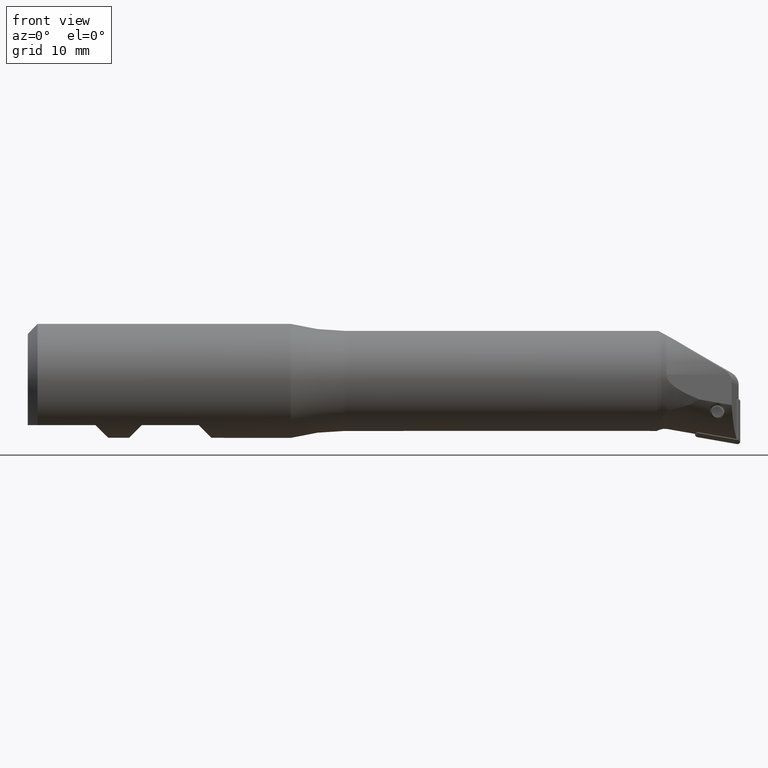
[diagram: clean part render]
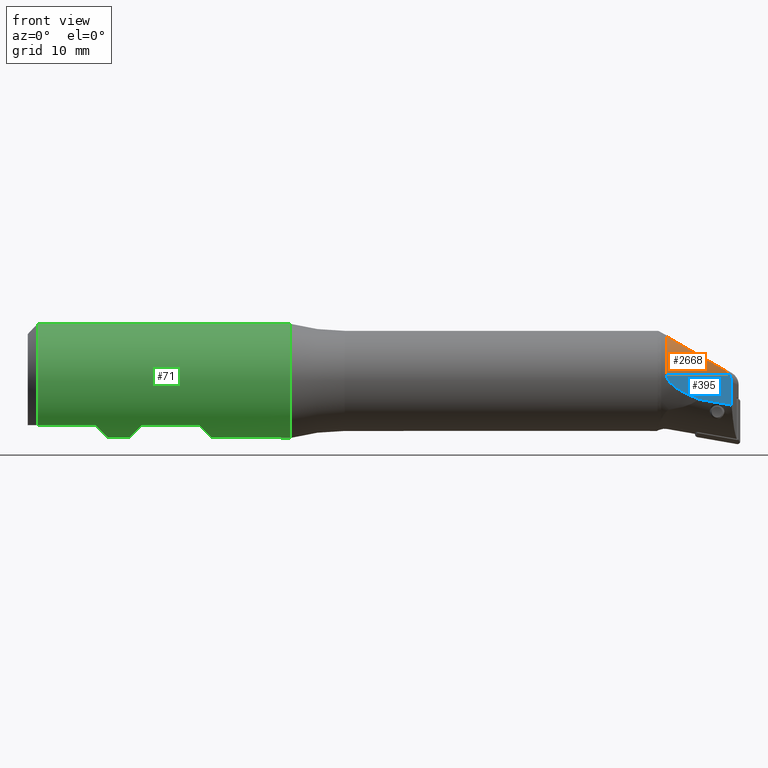
[diagram: same view with three faces highlighted in distinct colors, each labeled with its STEP entity id]
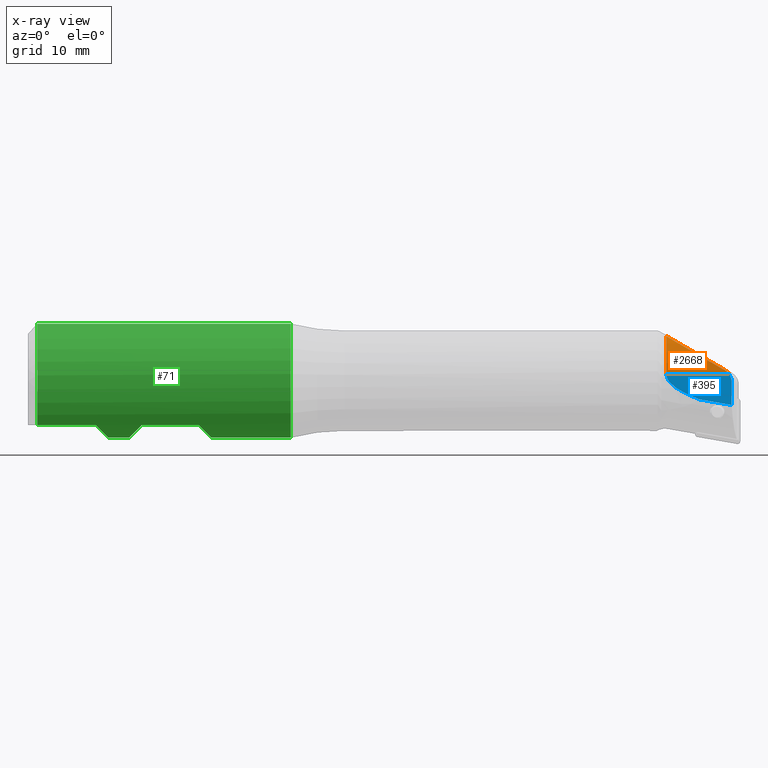
[diagram: x-ray of the same camera — body ghosted, the three highlighted faces saturated]
A machine part, front view with three faces highlighted in distinct colors.
The next image is the same camera in x-ray (body ghosted, the three faces saturated) — at least one of them is partly hidden behind the body in this view.
Their STEP definitions:

[orange] entity #2668 — the highlighted cylindrical surface (partial cylindrical patch) has radius 7.2 mm, axis along (-1, 0, 0).
#128 = CARTESIAN_POINT ( 'NONE',  ( 98.06803569502653800, -7.069949259488811100, 1.367062820759149800 ) ) ;
#144 = CARTESIAN_POINT ( 'NONE',  ( 91.37777261762256800, -5.349452263379819600, 5.247966563993948300 ) ) ;
#149 = DIRECTION ( 'NONE',  ( -1.000000000000000000, -0.0000000000000000000, 0.0000000000000000000 ) ) ;
#222 = CARTESIAN_POINT ( 'NONE',  ( 89.64991067919776000, -7.146332291817522300, 0.8774592725170650100 ) ) ;
#276 = ORIENTED_EDGE ( 'NONE', *, *, #1886, .F. ) ;
#286 = CARTESIAN_POINT ( 'NONE',  ( 89.64991067919776000, 0.0000000000000000000, 0.0000000000000000000 ) ) ;
#473 = CARTESIAN_POINT ( 'NONE',  ( 100.0000000000000000, 0.0000000000000000000, 0.0000000000000000000 ) ) ;
#576 = EDGE_CURVE ( 'NONE', #1666, #2981, #2375, .T. ) ;
#661 = LINE ( 'NONE', #1363, #3661 ) ;
#706 = FACE_OUTER_BOUND ( 'NONE', #3529, .T. ) ;
#736 = ORIENTED_EDGE ( 'NONE', *, *, #3323, .T. ) ;
#786 = CARTESIAN_POINT ( 'NONE',  ( 98.48807821853047500, -7.146332291817521400, 0.8774592725170650100 ) ) ;
#831 = AXIS2_PLACEMENT_3D ( 'NONE', #473, #149, #1874 ) ;
#965 = CARTESIAN_POINT ( 'NONE',  ( 89.64991067919774500, -3.540030141600190000, 6.269624119240497800 ) ) ;
#1279 = AXIS2_PLACEMENT_3D ( 'NONE', #286, #3679, #1358 ) ;
#1358 = DIRECTION ( 'NONE',  ( 0.0000000000000000000, 0.0000000000000000000, -1.000000000000000000 ) ) ;
#1363 = CARTESIAN_POINT ( 'NONE',  ( 100.0000000000000000, -7.146332291817520500, 0.8774592725170650100 ) ) ;
#1547 = B_SPLINE_CURVE_WITH_KNOTS ( 'NONE', 3,
 ( #1551, #3602, #2165, #128, #3567, #2446 ),
 .UNSPECIFIED., .F., .F.,
 ( 4, 2, 4 ),
 ( 0.0000000000000000000, 0.0004871406577945513100, 0.0009742813155891026100 ),
 .UNSPECIFIED. ) ;
#1551 = CARTESIAN_POINT ( 'NONE',  ( 98.48807821853047500, -7.146332291817521400, 0.8774592725170650100 ) ) ;
#1632 = DIRECTION ( 'NONE',  ( -1.000000000000000000, -1.577021341797098100E-016, 0.0000000000000000000 ) ) ;
#1666 = VERTEX_POINT ( 'NONE', #965 ) ;
#1703 = CARTESIAN_POINT ( 'NONE',  ( 97.79454697146641700, -7.031648091942604300, 1.547877615019996400 ) ) ;
#1783 = ORIENTED_EDGE ( 'NONE', *, *, #2365, .F. ) ;
#1855 = CARTESIAN_POINT ( 'NONE',  ( 89.64991067919774500, -3.540030141600190000, 6.269624119240497800 ) ) ;
#1874 = DIRECTION ( 'NONE',  ( 0.0000000000000000000, 0.0000000000000000000, 1.000000000000000000 ) ) ;
#1886 = EDGE_CURVE ( 'NONE', #3158, #3164, #661, .T. ) ;
#2141 = CARTESIAN_POINT ( 'NONE',  ( 97.79454697146641700, -7.031648091942604300, 1.547877615019996400 ) ) ;
#2165 = CARTESIAN_POINT ( 'NONE',  ( 98.30021398652390000, -7.109750562914676700, 1.142142819783420000 ) ) ;
#2169 = CYLINDRICAL_SURFACE ( 'NONE', #831, 7.200000000000002800 ) ;
#2191 = ORIENTED_EDGE ( 'NONE', *, *, #576, .F. ) ;
#2365 = EDGE_CURVE ( 'NONE', #3164, #1666, #2710, .T. ) ;
#2375 =( BOUNDED_CURVE ( )  B_SPLINE_CURVE ( 3, ( #1855, #144, #2716, #2141 ),
 .UNSPECIFIED., .F., .F. ) 
 B_SPLINE_CURVE_WITH_KNOTS ( ( 4, 4 ),
 ( 0.4953398551287048200, 1.335454243285933300 ),
 .UNSPECIFIED. ) 
 CURVE ( )  GEOMETRIC_REPRESENTATION_ITEM ( )  RATIONAL_B_SPLINE_CURVE ( ( 1.000000000000000000, 0.9420437448903211700, 0.9420437448903211700, 1.000000000000000000 ) ) 
 REPRESENTATION_ITEM ( '' )  );
#2446 = CARTESIAN_POINT ( 'NONE',  ( 97.79454697146641700, -7.031648091942604300, 1.547877615019996400 ) ) ;
#2668 = ADVANCED_FACE ( 'NONE', ( #706 ), #2169, .T. ) ;
#2710 = CIRCLE ( 'NONE', #1279, 7.200000000000002800 ) ;
#2716 = CARTESIAN_POINT ( 'NONE',  ( 94.25967569146085600, -6.584928488796129500, 3.577220900701974400 ) ) ;
#2981 = VERTEX_POINT ( 'NONE', #1703 ) ;
#3158 = VERTEX_POINT ( 'NONE', #786 ) ;
#3164 = VERTEX_POINT ( 'NONE', #222 ) ;
#3323 = EDGE_CURVE ( 'NONE', #3158, #2981, #1547, .T. ) ;
#3529 = EDGE_LOOP ( 'NONE', ( #276, #736, #2191, #1783 ) ) ;
#3567 = CARTESIAN_POINT ( 'NONE',  ( 97.93654664729345400, -7.049593310822619900, 1.466356658277222500 ) ) ;
#3602 = CARTESIAN_POINT ( 'NONE',  ( 98.40162076703536800, -7.129246351175048300, 1.016613092157164800 ) ) ;
#3661 = VECTOR ( 'NONE', #1632, 1000.000000000000000 ) ;
#3679 = DIRECTION ( 'NONE',  ( -1.000000000000000000, -0.0000000000000000000, -0.0000000000000000000 ) ) ;

[blue] entity #395 — the highlighted planar face has unit normal (0, -0.9925, 0.1219).
#9 = DIRECTION ( 'NONE',  ( 0.0000000000000000000, -0.1218693434051477300, -0.9925461516413219800 ) ) ;
#21 = CARTESIAN_POINT ( 'NONE',  ( 98.78314855636853100, -7.273322600411209000, -0.1567937936653388500 ) ) ;
#39 = VECTOR ( 'NONE', #481, 1000.000000000000000 ) ;
#56 = EDGE_CURVE ( 'NONE', #2943, #3158, #3146, .T. ) ;
#222 = CARTESIAN_POINT ( 'NONE',  ( 89.64991067919776000, -7.146332291817522300, 0.8774592725170650100 ) ) ;
#250 = EDGE_CURVE ( 'NONE', #3219, #2943, #2575, .T. ) ;
#307 = PLANE ( 'NONE',  #922 ) ;
#339 = ORIENTED_EDGE ( 'NONE', *, *, #250, .T. ) ;
#367 = EDGE_CURVE ( 'NONE', #3164, #1436, #3411, .T. ) ;
#395 = ADVANCED_FACE ( 'NONE', ( #1067 ), #307, .T. ) ;
#428 = DIRECTION ( 'NONE',  ( 0.9848077530122072400, -0.02116238939576977100, -0.1723538304828445600 ) ) ;
#481 = DIRECTION ( 'NONE',  ( -1.786639148493052100E-018, 0.1218693434051477300, 0.9925461516413219800 ) ) ;
#541 = CARTESIAN_POINT ( 'NONE',  ( 89.97964391630277700, -7.261188769749930200, -0.05797167326148981700 ) ) ;
#617 = CARTESIAN_POINT ( 'NONE',  ( 98.48807821853047500, -7.146332291817521400, 0.8774592725170650100 ) ) ;
#661 = LINE ( 'NONE', #1363, #3661 ) ;
#786 = CARTESIAN_POINT ( 'NONE',  ( 98.48807821853047500, -7.146332291817521400, 0.8774592725170650100 ) ) ;
#792 = VECTOR ( 'NONE', #428, 1000.000000000000200 ) ;
#824 = CARTESIAN_POINT ( 'NONE',  ( 89.64991067919777400, -7.161953534438749700, 0.7502344609743596400 ) ) ;
#837 = CARTESIAN_POINT ( 'NONE',  ( 89.64991067919776000, -7.146332291817522300, 0.8774592725170650100 ) ) ;
#899 = CARTESIAN_POINT ( 'NONE',  ( 92.40860406270488200, -7.475154339098153000, -1.800581393692227700 ) ) ;
#910 = CARTESIAN_POINT ( 'NONE',  ( 91.96450670417419800, -7.447431267558289200, -1.574795095024034400 ) ) ;
#922 = AXIS2_PLACEMENT_3D ( 'NONE', #2597, #3185, #9 ) ;
#1067 = FACE_OUTER_BOUND ( 'NONE', #3372, .T. ) ;
#1117 = CARTESIAN_POINT ( 'NONE',  ( 90.14594992610325600, -7.285133363537510400, -0.2529847401446684300 ) ) ;
#1150 = CARTESIAN_POINT ( 'NONE',  ( 90.70041208851837700, -7.347417158195818300, -0.7602455406907555600 ) ) ;
#1199 = CARTESIAN_POINT ( 'NONE',  ( 93.77094883624656100, -7.550894791033702100, -2.417437872866695900 ) ) ;
#1360 = CARTESIAN_POINT ( 'NONE',  ( 98.78314855636853100, -8.341730046946196400, -8.858274164473991500 ) ) ;
#1363 = CARTESIAN_POINT ( 'NONE',  ( 100.0000000000000000, -7.146332291817520500, 0.8774592725170650100 ) ) ;
#1402 = EDGE_CURVE ( 'NONE', #1436, #3219, #1531, .T. ) ;
#1433 = CARTESIAN_POINT ( 'NONE',  ( 94.23505425264080800, -7.573672046597678800, -2.602943732858301800 ) ) ;
#1436 = VERTEX_POINT ( 'NONE', #3085 ) ;
#1531 = LINE ( 'NONE', #2735, #792 ) ;
#1598 = ORIENTED_EDGE ( 'NONE', *, *, #56, .T. ) ;
#1632 = DIRECTION ( 'NONE',  ( -1.000000000000000000, -1.577021341797098100E-016, 0.0000000000000000000 ) ) ;
#1836 = ORIENTED_EDGE ( 'NONE', *, *, #367, .T. ) ;
#1886 = EDGE_CURVE ( 'NONE', #3158, #3164, #661, .T. ) ;
#2139 = CARTESIAN_POINT ( 'NONE',  ( 98.78314855636853100, -7.671405378174101000, -3.398917842776739900 ) ) ;
#2161 = ORIENTED_EDGE ( 'NONE', *, *, #1402, .T. ) ;
#2282 = ORIENTED_EDGE ( 'NONE', *, *, #1886, .T. ) ;
#2362 = CARTESIAN_POINT ( 'NONE',  ( 98.78314855636853100, -7.273322600411209000, -0.1567937936653388500 ) ) ;
#2575 = LINE ( 'NONE', #1360, #39 ) ;
#2597 = CARTESIAN_POINT ( 'NONE',  ( 100.0000000000000000, -7.146332291817520500, 0.8774592725170650100 ) ) ;
#2613 = CARTESIAN_POINT ( 'NONE',  ( 98.78314855636853100, -7.228121280757549400, 0.2113414125956903400 ) ) ;
#2620 = CARTESIAN_POINT ( 'NONE',  ( 91.32064200035017600, -7.400338910407167100, -1.191258624275406000 ) ) ;
#2735 = CARTESIAN_POINT ( 'NONE',  ( 101.7177212463918700, -7.734465980394700700, -3.912505233218006600 ) ) ;
#2943 = VERTEX_POINT ( 'NONE', #21 ) ;
#3085 = CARTESIAN_POINT ( 'NONE',  ( 94.23505425264080800, -7.573672046597678800, -2.602943732858301800 ) ) ;
#3091 = CARTESIAN_POINT ( 'NONE',  ( 89.66927014974007200, -7.177147427873456400, 0.6264901292523733500 ) ) ;
#3146 =( BOUNDED_CURVE ( )  B_SPLINE_CURVE ( 3, ( #2362, #2613, #3480, #617 ),
 .UNSPECIFIED., .F., .F. ) 
 B_SPLINE_CURVE_WITH_KNOTS ( ( 4, 4 ),
 ( 5.763884693139955200, 6.311891708544264300 ),
 .UNSPECIFIED. ) 
 CURVE ( )  GEOMETRIC_REPRESENTATION_ITEM ( )  RATIONAL_B_SPLINE_CURVE ( ( 1.000000000000000000, 0.9751302094480373000, 0.9751302094480373000, 1.000000000000000000 ) ) 
 REPRESENTATION_ITEM ( '' )  );
#3158 = VERTEX_POINT ( 'NONE', #786 ) ;
#3164 = VERTEX_POINT ( 'NONE', #222 ) ;
#3172 = CARTESIAN_POINT ( 'NONE',  ( 93.31164108690664700, -7.526931594359078700, -2.222273297626877800 ) ) ;
#3185 = DIRECTION ( 'NONE',  ( 1.565266463856943400E-016, -0.9925461516413219800, 0.1218693434051477300 ) ) ;
#3219 = VERTEX_POINT ( 'NONE', #2139 ) ;
#3372 = EDGE_LOOP ( 'NONE', ( #339, #1598, #2282, #1836, #2161 ) ) ;
#3394 = CARTESIAN_POINT ( 'NONE',  ( 89.74097240157705400, -7.206807127113211900, 0.3849312636942811000 ) ) ;
#3411 = B_SPLINE_CURVE_WITH_KNOTS ( 'NONE', 3,
 ( #837, #824, #3091, #3394, #3682, #541, #1117, #3691, #1150, #3426, #2620, #910, #899, #3172, #1199, #1433 ),
 .UNSPECIFIED., .F., .F.,
 ( 4, 2, 2, 2, 2, 2, 2, 4 ),
 ( 1.982727753661706700E-007, 0.0003785819590555002800, 0.0007569656453356343900, 0.001513733017895923000, 0.002270500390456211600, 0.003027267763016500400, 0.004540802508137077600, 0.006054337253257654300 ),
 .UNSPECIFIED. ) ;
#3426 = CARTESIAN_POINT ( 'NONE',  ( 91.10975275850995600, -7.383706164088489600, -1.055795776207488100 ) ) ;
#3480 = CARTESIAN_POINT ( 'NONE',  ( 98.68228327876111900, -7.184711587924299500, 0.5648849893616531000 ) ) ;
#3661 = VECTOR ( 'NONE', #1632, 1000.000000000000000 ) ;
#3682 = CARTESIAN_POINT ( 'NONE',  ( 89.79320461070453500, -7.221098990086035000, 0.2685333805424555700 ) ) ;
#3691 = CARTESIAN_POINT ( 'NONE',  ( 90.50490913502152100, -7.328064125211407800, -0.6026277356336885400 ) ) ;

[green] entity #71 — the highlighted cylindrical surface (bore or boss wall) has radius 8 mm, axis along (-1, -0, -0).
#2 = VERTEX_POINT ( 'NONE', #1227 ) ;
#36 = LINE ( 'NONE', #3296, #1369 ) ;
#66 = VERTEX_POINT ( 'NONE', #3218 ) ;
#71 = ADVANCED_FACE ( 'NONE', ( #2495, #1546, #1633 ), #2217, .T. ) ;
#75 = DIRECTION ( 'NONE',  ( 1.000000000000000000, 0.0000000000000000000, 0.0000000000000000000 ) ) ;
#95 = CARTESIAN_POINT ( 'NONE',  ( -3.175455607189903200, 0.0000000000000000000, 0.0000000000000000000 ) ) ;
#159 = ORIENTED_EDGE ( 'NONE', *, *, #1021, .T. ) ;
#174 = DIRECTION ( 'NONE',  ( -1.000000000000000000, -0.0000000000000000000, -0.0000000000000000000 ) ) ;
#242 = DIRECTION ( 'NONE',  ( 0.0000000000000000000, 0.0000000000000000000, 1.000000000000000000 ) ) ;
#267 = CIRCLE ( 'NONE', #3386, 8.000000000000000000 ) ;
#351 = LINE ( 'NONE', #675, #716 ) ;
#491 = EDGE_LOOP ( 'NONE', ( #1430, #1422, #877, #912 ) ) ;
#493 = DIRECTION ( 'NONE',  ( -1.000000000000000000, -0.0000000000000000000, -0.0000000000000000000 ) ) ;
#528 = EDGE_CURVE ( 'NONE', #2328, #2, #1771, .T. ) ;
#548 = EDGE_CURVE ( 'NONE', #66, #3536, #351, .T. ) ;
#578 = CARTESIAN_POINT ( 'NONE',  ( 24.00000000000000000, -5.055689863905816300, -6.199999999999999300 ) ) ;
#636 = ORIENTED_EDGE ( 'NONE', *, *, #875, .T. ) ;
#674 = EDGE_CURVE ( 'NONE', #3536, #1796, #3645, .T. ) ;
#675 = CARTESIAN_POINT ( 'NONE',  ( -3.175455607189903200, 5.055689863905816300, -6.199999999999999300 ) ) ;
#716 = VECTOR ( 'NONE', #1765, 1000.000000000000000 ) ;
#808 = VECTOR ( 'NONE', #75, 1000.000000000000000 ) ;
#860 = CARTESIAN_POINT ( 'NONE',  ( 26.50588235294121000, -1.982623476041496500, -8.705882352941177500 ) ) ;
#875 = EDGE_CURVE ( 'NONE', #2, #2677, #1640, .T. ) ;
#877 = ORIENTED_EDGE ( 'NONE', *, *, #548, .T. ) ;
#912 = ORIENTED_EDGE ( 'NONE', *, *, #674, .T. ) ;
#933 = CARTESIAN_POINT ( 'NONE',  ( -3.175455607189903200, -5.055689863905816300, -6.199999999999999300 ) ) ;
#950 = AXIS2_PLACEMENT_3D ( 'NONE', #3278, #3086, #242 ) ;
#1021 = EDGE_CURVE ( 'NONE', #1318, #1318, #267, .T. ) ;
#1214 = CARTESIAN_POINT ( 'NONE',  ( 9.500000000000001800, 5.055689863905815400, -6.199999999999999300 ) ) ;
#1227 = CARTESIAN_POINT ( 'NONE',  ( 9.500000000000001800, -5.055689863905816300, -6.199999999999999300 ) ) ;
#1298 = AXIS2_PLACEMENT_3D ( 'NONE', #95, #2060, #1756 ) ;
#1318 = VERTEX_POINT ( 'NONE', #2095 ) ;
#1319 = CARTESIAN_POINT ( 'NONE',  ( 16.00000000000000000, -5.055689863905817200, -6.199999999999999300 ) ) ;
#1324 = CARTESIAN_POINT ( 'NONE',  ( 16.00000000000000000, -5.055689863905817200, -6.199999999999999300 ) ) ;
#1344 = CARTESIAN_POINT ( 'NONE',  ( 16.00000000000000000, 5.055689863905815400, -6.199999999999999300 ) ) ;
#1369 = VECTOR ( 'NONE', #2160, 1000.000000000000000 ) ;
#1379 = LINE ( 'NONE', #2712, #2800 ) ;
#1422 = ORIENTED_EDGE ( 'NONE', *, *, #2467, .T. ) ;
#1430 = ORIENTED_EDGE ( 'NONE', *, *, #2608, .T. ) ;
#1431 = CARTESIAN_POINT ( 'NONE',  ( 24.00000000000000000, 5.055689863905815400, -6.199999999999999300 ) ) ;
#1546 = FACE_OUTER_BOUND ( 'NONE', #2105, .T. ) ;
#1627 = CARTESIAN_POINT ( 'NONE',  ( 1.374999999999999600, -5.055689863905816300, -6.199999999999999300 ) ) ;
#1633 = FACE_OUTER_BOUND ( 'NONE', #2367, .T. ) ;
#1640 =( BOUNDED_CURVE ( )  B_SPLINE_CURVE ( 3, ( #2659, #2674, #3190, #1214 ),
 .UNSPECIFIED., .F., .F. ) 
 B_SPLINE_CURVE_WITH_KNOTS ( ( 4, 4 ),
 ( 2.457511421794463600, 3.825673885385122200 ),
 .UNSPECIFIED. ) 
 CURVE ( )  GEOMETRIC_REPRESENTATION_ITEM ( )  RATIONAL_B_SPLINE_CURVE ( ( 1.000000000000000000, 0.8499999999999998700, 0.8499999999999998700, 1.000000000000000000 ) ) 
 REPRESENTATION_ITEM ( '' )  );
#1686 = VERTEX_POINT ( 'NONE', #1797 ) ;
#1708 = EDGE_CURVE ( 'NONE', #2677, #1686, #1379, .T. ) ;
#1731 = ORIENTED_EDGE ( 'NONE', *, *, #1708, .T. ) ;
#1756 = DIRECTION ( 'NONE',  ( 0.0000000000000000000, 0.0000000000000000000, 1.000000000000000000 ) ) ;
#1765 = DIRECTION ( 'NONE',  ( -1.000000000000000000, -0.0000000000000000000, -0.0000000000000000000 ) ) ;
#1771 = LINE ( 'NONE', #933, #808 ) ;
#1796 = VERTEX_POINT ( 'NONE', #1324 ) ;
#1797 = CARTESIAN_POINT ( 'NONE',  ( 1.375000000000003100, 5.055689863905843900, -6.199999999999999300 ) ) ;
#1847 = CARTESIAN_POINT ( 'NONE',  ( 24.00000000000000000, -5.055689863905816300, -6.199999999999999300 ) ) ;
#1899 = CARTESIAN_POINT ( 'NONE',  ( 13.49411764705879700, -1.982623476041497100, -8.705882352941179300 ) ) ;
#2060 = DIRECTION ( 'NONE',  ( -1.000000000000000000, -0.0000000000000000000, -0.0000000000000000000 ) ) ;
#2095 = CARTESIAN_POINT ( 'NONE',  ( 36.91386956347309900, 0.0000000000000000000, 8.000000000000000000 ) ) ;
#2105 = EDGE_LOOP ( 'NONE', ( #636, #1731, #2609, #2726 ) ) ;
#2160 = DIRECTION ( 'NONE',  ( 1.000000000000000000, 0.0000000000000000000, 0.0000000000000000000 ) ) ;
#2217 = CYLINDRICAL_SURFACE ( 'NONE', #1298, 8.000000000000000000 ) ;
#2328 = VERTEX_POINT ( 'NONE', #1627 ) ;
#2367 = EDGE_LOOP ( 'NONE', ( #159 ) ) ;
#2440 = CIRCLE ( 'NONE', #950, 8.000000000000000000 ) ;
#2467 = EDGE_CURVE ( 'NONE', #2629, #66, #2492, .T. ) ;
#2492 =( BOUNDED_CURVE ( )  B_SPLINE_CURVE ( 3, ( #578, #860, #2850, #1431 ),
 .UNSPECIFIED., .F., .T. ) 
 B_SPLINE_CURVE_WITH_KNOTS ( ( 4, 4 ),
 ( 2.457511421794464000, 3.825673885385122200 ),
 .UNSPECIFIED. ) 
 CURVE ( )  GEOMETRIC_REPRESENTATION_ITEM ( )  RATIONAL_B_SPLINE_CURVE ( ( 1.000000000000000000, 0.8500000000000000900, 0.8500000000000000900, 1.000000000000000000 ) ) 
 REPRESENTATION_ITEM ( '' )  );
#2495 = FACE_BOUND ( 'NONE', #491, .T. ) ;
#2608 = EDGE_CURVE ( 'NONE', #1796, #2629, #36, .T. ) ;
#2609 = ORIENTED_EDGE ( 'NONE', *, *, #3371, .F. ) ;
#2629 = VERTEX_POINT ( 'NONE', #1847 ) ;
#2659 = CARTESIAN_POINT ( 'NONE',  ( 9.500000000000001800, -5.055689863905816300, -6.199999999999999300 ) ) ;
#2674 = CARTESIAN_POINT ( 'NONE',  ( 12.00588235294119600, -1.982623476041499400, -8.705882352941175700 ) ) ;
#2677 = VERTEX_POINT ( 'NONE', #3608 ) ;
#2712 = CARTESIAN_POINT ( 'NONE',  ( -3.175455607189903200, 5.055689863905816300, -6.199999999999999300 ) ) ;
#2726 = ORIENTED_EDGE ( 'NONE', *, *, #528, .T. ) ;
#2800 = VECTOR ( 'NONE', #174, 1000.000000000000000 ) ;
#2850 = CARTESIAN_POINT ( 'NONE',  ( 26.50588235294121000, 1.982623476041494700, -8.705882352941177500 ) ) ;
#3026 = CARTESIAN_POINT ( 'NONE',  ( 36.91386956347309900, 0.0000000000000000000, 0.0000000000000000000 ) ) ;
#3061 = CARTESIAN_POINT ( 'NONE',  ( 13.49411764705879700, 1.982623476041499400, -8.705882352941179300 ) ) ;
#3064 = DIRECTION ( 'NONE',  ( 0.0000000000000000000, 0.0000000000000000000, 1.000000000000000000 ) ) ;
#3086 = DIRECTION ( 'NONE',  ( -1.000000000000000000, -0.0000000000000000000, -0.0000000000000000000 ) ) ;
#3095 = CARTESIAN_POINT ( 'NONE',  ( 16.00000000000000000, 5.055689863905815400, -6.199999999999999300 ) ) ;
#3190 = CARTESIAN_POINT ( 'NONE',  ( 12.00588235294119800, 1.982623476041493400, -8.705882352941179300 ) ) ;
#3218 = CARTESIAN_POINT ( 'NONE',  ( 24.00000000000000000, 5.055689863905815400, -6.199999999999999300 ) ) ;
#3278 = CARTESIAN_POINT ( 'NONE',  ( 1.374999999999999600, 0.0000000000000000000, 0.0000000000000000000 ) ) ;
#3296 = CARTESIAN_POINT ( 'NONE',  ( -3.175455607189903200, -5.055689863905816300, -6.199999999999999300 ) ) ;
#3371 = EDGE_CURVE ( 'NONE', #2328, #1686, #2440, .T. ) ;
#3386 = AXIS2_PLACEMENT_3D ( 'NONE', #3026, #493, #3064 ) ;
#3536 = VERTEX_POINT ( 'NONE', #3095 ) ;
#3608 = CARTESIAN_POINT ( 'NONE',  ( 9.500000000000001800, 5.055689863905815400, -6.199999999999999300 ) ) ;
#3645 =( BOUNDED_CURVE ( )  B_SPLINE_CURVE ( 3, ( #1344, #3061, #1899, #1319 ),
 .UNSPECIFIED., .F., .F. ) 
 B_SPLINE_CURVE_WITH_KNOTS ( ( 4, 4 ),
 ( 5.599104075384256700, 6.967266538974915800 ),
 .UNSPECIFIED. ) 
 CURVE ( )  GEOMETRIC_REPRESENTATION_ITEM ( )  RATIONAL_B_SPLINE_CURVE ( ( 1.000000000000000000, 0.8499999999999998700, 0.8499999999999998700, 1.000000000000000000 ) ) 
 REPRESENTATION_ITEM ( '' )  );